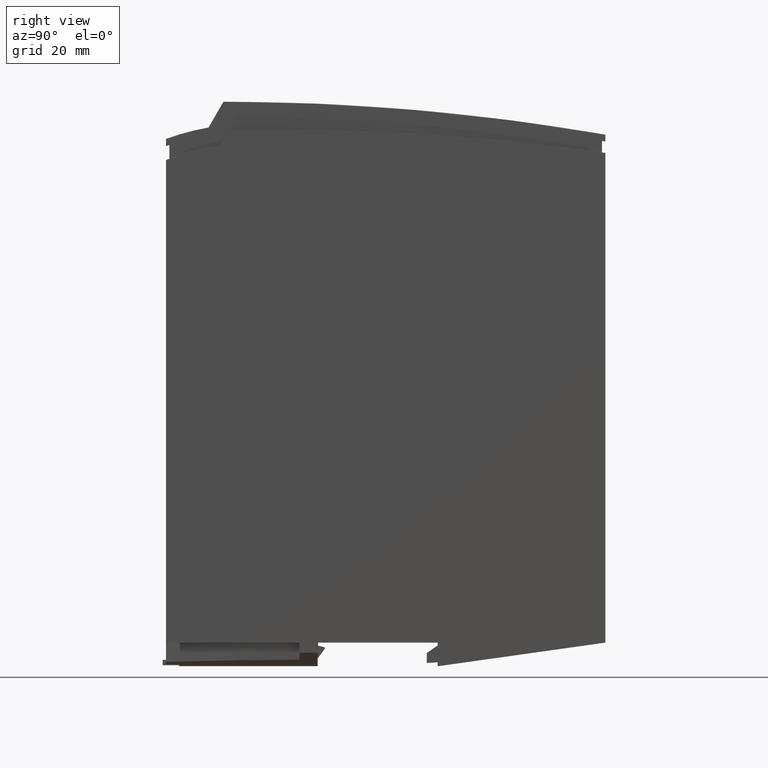
[diagram: clean part render]
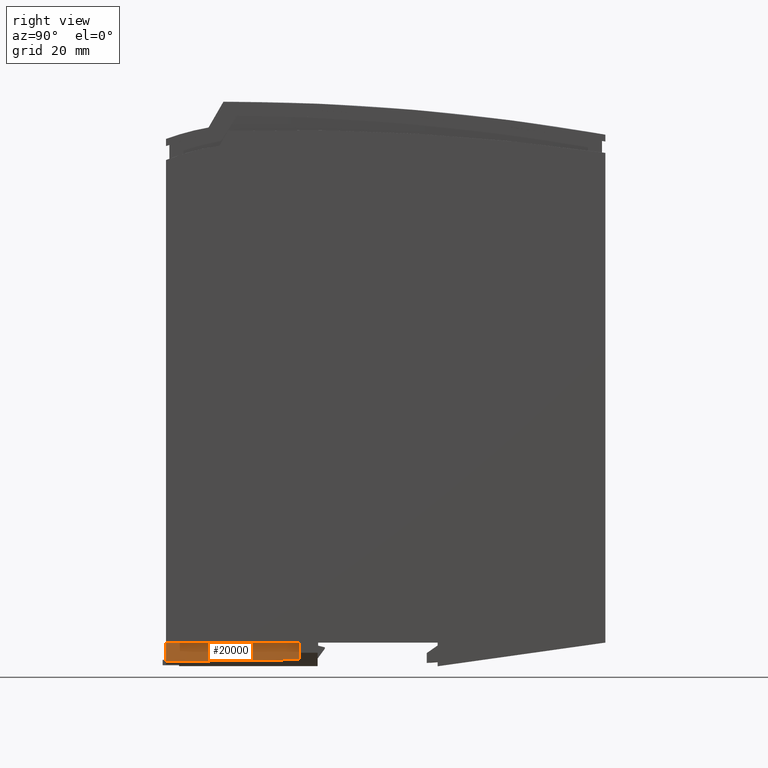
[diagram: same view with one face highlighted and labeled with its STEP entity id]
A machine part, right view. The second image highlights one B-rep face of the part: STEP entity #20000.
In plain terms, the highlighted cylindrical surface (partial cylindrical patch) has radius 430 mm, axis along (0, 0, -1).
Its self-contained STEP definition (entity closure, byte-faithful):
#14240=CARTESIAN_POINT('',(0.,41.47129019691,385.495481389));
#14250=DIRECTION('',(-1.,0.,0.));
#14260=DIRECTION('',(0.,-0.0114810397156901,-0.999934090691505));
#14270=AXIS2_PLACEMENT_3D('',#14240,#14250,#14260);
#14280=CIRCLE('',#14270,430.);
#14290=CARTESIAN_POINT('',(0.,39.5,-44.500000000002));
#14300=VERTEX_POINT('',#14290);
#14310=CARTESIAN_POINT('',(0.,0.,-42.5000000000022));
#14320=VERTEX_POINT('',#14310);
#14330=EDGE_CURVE('',#14300,#14320,#14280,.T.);
#15700=CARTESIAN_POINT('',(0.,39.5,-44.500000000002));
#15710=DIRECTION('',(-1.,0.,0.));
#15720=VECTOR('',#15710,1.);
#15730=LINE('',#15700,#15720);
#15740=CARTESIAN_POINT('',(-5.06139823405462,39.5,-44.500000000002));
#15750=VERTEX_POINT('',#15740);
#15760=EDGE_CURVE('',#14300,#15750,#15730,.T.);
#15970=CARTESIAN_POINT('',(38.53,0.,-29.5));
#15980=DIRECTION('',(0.,-1.,0.));
#15990=DIRECTION('',(0.,0.,1.));
#16000=AXIS2_PLACEMENT_3D('',#15970,#15980,#15990);
#16010=CYLINDRICAL_SURFACE('',#16000,46.1);
#16090=CARTESIAN_POINT('',(-5.69906284337142,0.,-42.4999999998886));
#16100=VERTEX_POINT('',#16090);
#16130=CARTESIAN_POINT('',(0.,41.47129019691,385.495481389));
#16140=DIRECTION('',(-1.,0.,0.));
#16150=DIRECTION('',(0.,-0.0114810397156901,-0.999934090691505));
#16160=AXIS2_PLACEMENT_3D('',#16130,#16140,#16150);
#16170=CYLINDRICAL_SURFACE('',#16160,430.);
#16180=CARTESIAN_POINT('',(-5.69906284332027,6.23206323586224E-10,
-42.5000000000625));
#16190=CARTESIAN_POINT('',(-5.65234341144857,1.6404144087636,
-42.6589505145431));
#16200=CARTESIAN_POINT('',(-5.60746215915543,3.28194619535421,
-42.8084893889175));
#16210=CARTESIAN_POINT('',(-5.56473077107385,4.92442898250694,
-42.9485953997627));
#16220=CARTESIAN_POINT('',(-5.52199938380066,6.56691173858748,
-43.0887014079573));
#16230=CARTESIAN_POINT('',(-5.48141798760111,8.21034530708734,
-43.2193745300276));
#16240=CARTESIAN_POINT('',(-5.443263064307,9.85456112642289,
-43.3405973670709));
#16250=CARTESIAN_POINT('',(-5.40510814135683,11.4987769309366,
-43.4618202030215));
#16260=CARTESIAN_POINT('',(-5.36937981104008,13.1437747641458,
-43.5735927327115));
#16270=CARTESIAN_POINT('',(-5.33631755924261,14.7893844294966,
-43.6759015160317));
#16280=CARTESIAN_POINT('',(-5.30325530729906,16.4349941021185,
-43.7782102998038));
#16290=CARTESIAN_POINT('',(-5.2728592416345,18.081215351487,
-43.8710553188197));
#16300=CARTESIAN_POINT('',(-5.24533020258669,19.7278770876394,
-43.9544271991354));
#16310=CARTESIAN_POINT('',(-5.21780116294486,21.3745388593227,
-44.0377990812501));
#16320=CARTESIAN_POINT('',(-5.193139241154,23.0216408309544,
-44.1116978106662));
#16330=CARTESIAN_POINT('',(-5.17150519369299,24.6690119614391,
-44.1761181449901));
#16340=CARTESIAN_POINT('',(-5.14987114530991,26.3163831621361,
-44.2405384820597));
#16350=CARTESIAN_POINT('',(-5.13126504194733,27.9640232063692,
-44.2954804159588));
#16360=CARTESIAN_POINT('',(-5.11580639099603,29.6117622491336,
-44.3409428433536));
#16370=CARTESIAN_POINT('',(-5.10034782845812,31.259491867906,
-44.386405010733));
#16380=CARTESIAN_POINT('',(-5.08803635730537,32.90730973767,
-44.4223888747004));
#16390=CARTESIAN_POINT('',(-5.0789486950526,34.555408817043,
-44.4488994147705));
#16400=CARTESIAN_POINT('',(-5.06986121986584,36.2034739709338,
-44.4754094091314));
#16410=CARTESIAN_POINT('',(-5.06399844476817,37.851718388663,
-44.4924435452883));
#16420=CARTESIAN_POINT('',(-5.06139823405468,39.5,-44.500000000002));
#16430=B_SPLINE_CURVE_WITH_KNOTS('',3,(#16180,#16190,#16200,#16210,
#16220,#16230,#16240,#16250,#16260,#16270,#16280,#16290,#16300,#16310,
#16320,#16330,#16340,#16350,#16360,#16370,#16380,#16390,#16400,#16410,
#16420),.UNSPECIFIED.,.F.,.F.,(4,3,3,3,3,3,3,3,4),(0.,4.94667213094189,
9.89388430436179,14.8412711364189,19.7884782002047,24.7351646291252,
29.6810061268739,34.6259989876421,39.5709158003537),.UNSPECIFIED.);
#16440=SURFACE_CURVE('',#16430,(#16170,#16010),.CURVE_3D.);
#16450=EDGE_CURVE('',#16100,#15750,#16440,.T.);
#19890=ORIENTED_EDGE('',*,*,#16450,.T.);
#19900=CARTESIAN_POINT('',(0.,0.,-42.5000000000022));
#19910=DIRECTION('',(-1.,0.,0.));
#19920=VECTOR('',#19910,1.);
#19930=LINE('',#19900,#19920);
#19940=EDGE_CURVE('',#14320,#16100,#19930,.T.);
#19950=ORIENTED_EDGE('',*,*,#19940,.T.);
#19960=ORIENTED_EDGE('',*,*,#14330,.T.);
#19970=ORIENTED_EDGE('',*,*,#15760,.F.);
#19980=EDGE_LOOP('',(#19970,#19960,#19950,#19890));
#19990=FACE_OUTER_BOUND('',#19980,.T.);
#20000=ADVANCED_FACE('',(#19990),#16170,.T.);